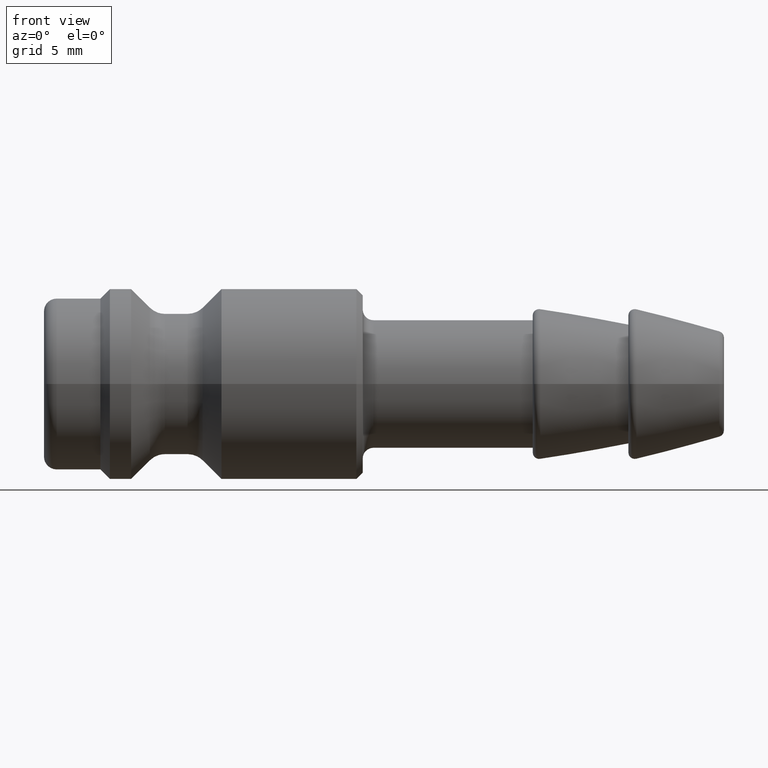
[diagram: clean part render]
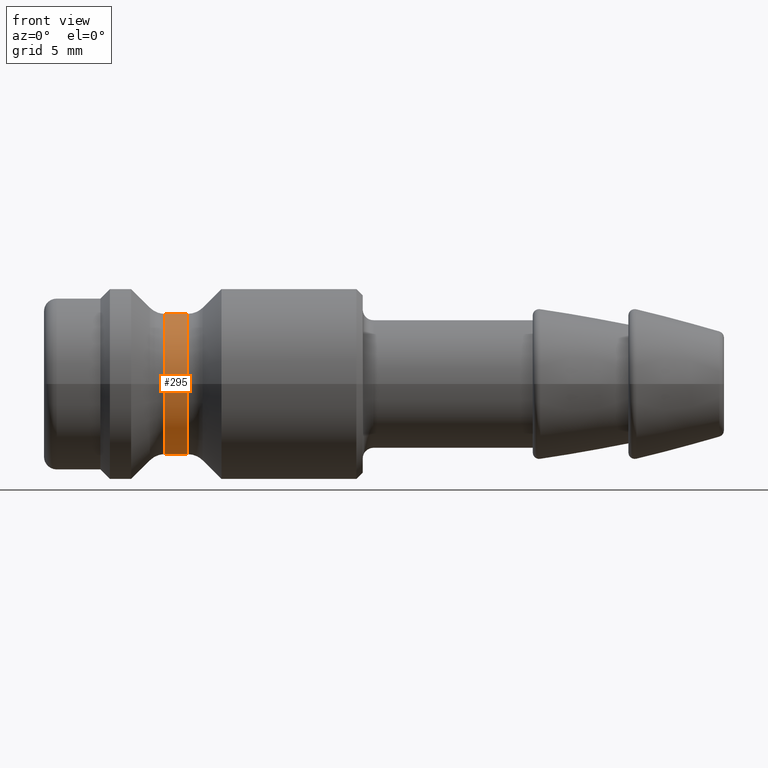
[diagram: same view with one face highlighted and labeled with its STEP entity id]
A machine part, front view. The second image highlights one B-rep face of the part: STEP entity #295.
In plain terms, the highlighted cylindrical surface (bore or boss wall) has radius 3.325 mm, axis along (-1, 0, 0).
Its self-contained STEP definition (entity closure, byte-faithful):
#261=CARTESIAN_POINT('',(6.760786437626901,-3.325000000000001,0.0));
#262=VERTEX_POINT('',#261);
#263=CARTESIAN_POINT('',(6.760786437626902,0.0,0.0));
#264=DIRECTION('',(-1.0,0.0,0.0));
#265=DIRECTION('',(0.0,-1.0,0.0));
#266=AXIS2_PLACEMENT_3D('',#263,#264,#265);
#267=CIRCLE('',#266,3.325000000000001);
#268=EDGE_CURVE('',#262,#262,#267,.T.);
#276=CARTESIAN_POINT('',(6.224999999999996,0.0,0.0));
#277=DIRECTION('',(-1.0,0.0,0.0));
#278=DIRECTION('',(0.0,-1.0,0.0));
#279=AXIS2_PLACEMENT_3D('',#276,#277,#278);
#280=CYLINDRICAL_SURFACE('',#279,3.325000000000001);
#281=CARTESIAN_POINT('',(5.689213562373094,-3.325000000000001,0.0));
#282=VERTEX_POINT('',#281);
#283=CARTESIAN_POINT('',(5.689213562373094,0.0,0.0));
#284=DIRECTION('',(-1.0,0.0,0.0));
#285=DIRECTION('',(0.0,-1.0,0.0));
#286=AXIS2_PLACEMENT_3D('',#283,#284,#285);
#287=CIRCLE('',#286,3.325000000000001);
#288=EDGE_CURVE('',#282,#282,#287,.T.);
#289=ORIENTED_EDGE('',*,*,#288,.F.);
#290=EDGE_LOOP('',(#289));
#291=FACE_OUTER_BOUND('',#290,.T.);
#292=ORIENTED_EDGE('',*,*,#268,.T.);
#293=EDGE_LOOP('',(#292));
#294=FACE_BOUND('',#293,.T.);
#295=ADVANCED_FACE('',(#291,#294),#280,.T.);